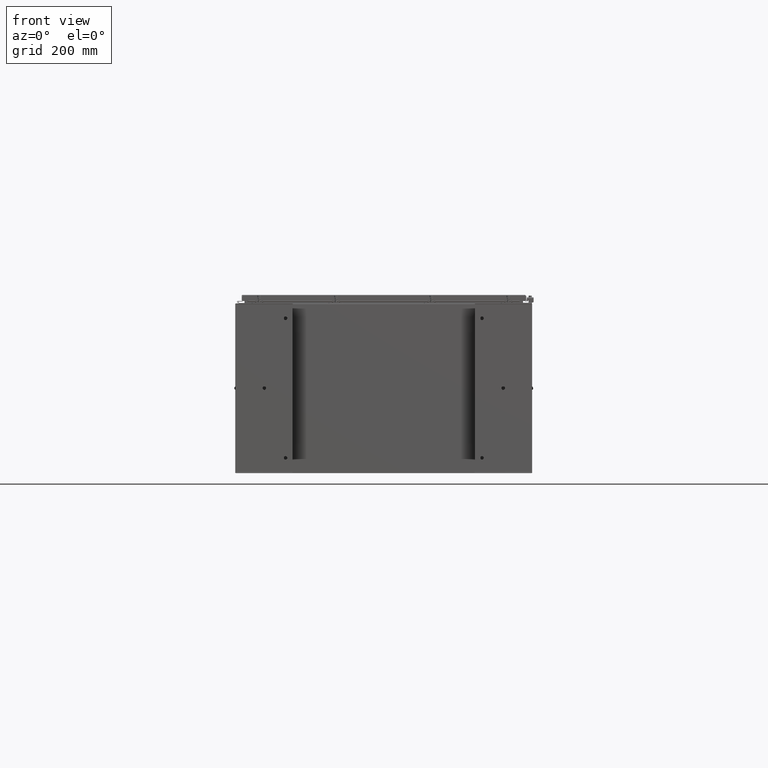
[diagram: clean part render]
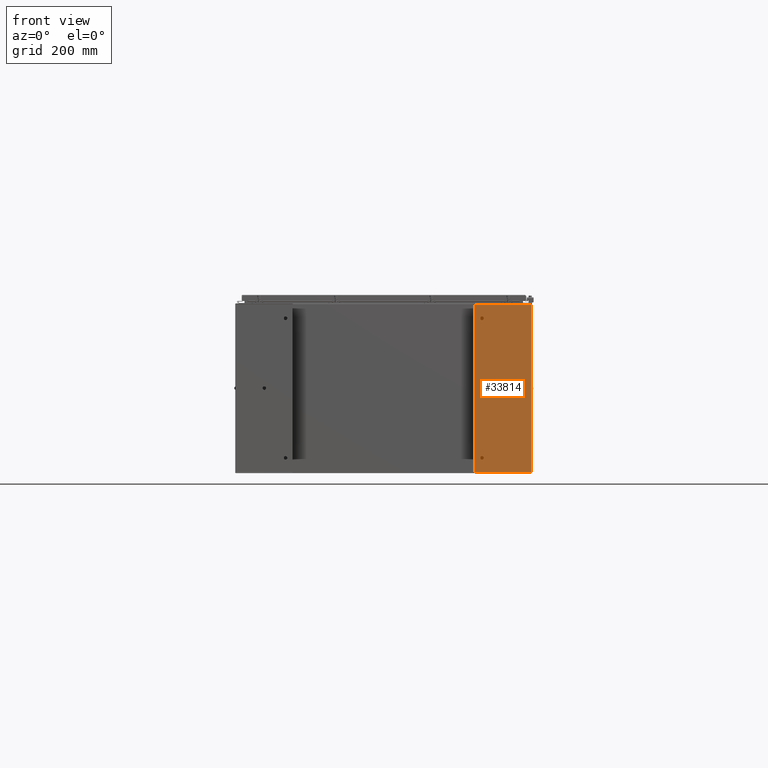
[diagram: same view with one face highlighted and labeled with its STEP entity id]
A machine part, front view. The second image highlights one B-rep face of the part: STEP entity #33814.
In plain terms, the highlighted planar face has unit normal (0, -1, 0).
Its self-contained STEP definition (entity closure, byte-faithful):
#2573 = EDGE_LOOP ( 'NONE', ( #6752, #62519 ) ) ;
#3866 = VERTEX_POINT ( 'NONE', #21113 ) ;
#4278 = CARTESIAN_POINT ( 'NONE',  ( -11.87899999999999800, -4.000000000000000900, -0.1050000000000000000 ) ) ;
#4342 = CIRCLE ( 'NONE', #58274, 0.2499999999999998100 ) ;
#6365 = DIRECTION ( 'NONE',  ( -0.0000000000000000000, -0.0000000000000000000, 1.000000000000000000 ) ) ;
#6752 = ORIENTED_EDGE ( 'NONE', *, *, #63840, .F. ) ;
#6792 = DIRECTION ( 'NONE',  ( -0.0000000000000000000, -1.000000000000000000, -0.0000000000000000000 ) ) ;
#7209 = CARTESIAN_POINT ( 'NONE',  ( 11.87900000000000300, -4.000000000000000900, -0.1050000000000000000 ) ) ;
#7696 = DIRECTION ( 'NONE',  ( 0.0000000000000000000, 0.0000000000000000000, -1.000000000000000000 ) ) ;
#8537 = AXIS2_PLACEMENT_3D ( 'NONE', #18632, #59901, #24550 ) ;
#8852 = CIRCLE ( 'NONE', #59727, 0.2499999999999998100 ) ;
#9178 = VECTOR ( 'NONE', #13282, 39.37007874015748100 ) ;
#9903 = CARTESIAN_POINT ( 'NONE',  ( 0.0000000000000000000, 0.0000000000000000000, -0.1050000000000000000 ) ) ;
#11868 = AXIS2_PLACEMENT_3D ( 'NONE', #23774, #64952, #29709 ) ;
#13282 = DIRECTION ( 'NONE',  ( 0.0000000000000000000, 1.000000000000000000, 0.0000000000000000000 ) ) ;
#14406 = DIRECTION ( 'NONE',  ( -1.000000000000000000, -0.0000000000000000000, -0.0000000000000000000 ) ) ;
#15290 = ORIENTED_EDGE ( 'NONE', *, *, #59393, .T. ) ;
#15319 = ORIENTED_EDGE ( 'NONE', *, *, #60577, .T. ) ;
#15990 = DIRECTION ( 'NONE',  ( -1.000000000000000000, 0.0000000000000000000, 0.0000000000000000000 ) ) ;
#17458 = ORIENTED_EDGE ( 'NONE', *, *, #68788, .T. ) ;
#18632 = CARTESIAN_POINT ( 'NONE',  ( 0.0000000000000000000, 0.0000000000000000000, -0.1050000000000000000 ) ) ;
#19335 = CARTESIAN_POINT ( 'NONE',  ( -11.87899999999999800, 3.999999999999999600, -0.1050000000000000000 ) ) ;
#19678 = VERTEX_POINT ( 'NONE', #57179 ) ;
#20607 = CIRCLE ( 'NONE', #8537, 0.2500000000000000000 ) ;
#21113 = CARTESIAN_POINT ( 'NONE',  ( 10.12900000000000100, -3.000000000000001300, -0.1050000000000000000 ) ) ;
#21781 = EDGE_CURVE ( 'NONE', #19678, #3866, #4342, .T. ) ;
#21828 = CIRCLE ( 'NONE', #33858, 0.2500000000000000000 ) ;
#22227 = DIRECTION ( 'NONE',  ( 0.0000000000000000000, 0.0000000000000000000, -1.000000000000000000 ) ) ;
#22440 = CARTESIAN_POINT ( 'NONE',  ( -9.629000000000001300, -3.000000000000001300, -0.1050000000000000000 ) ) ;
#23774 = CARTESIAN_POINT ( 'NONE',  ( -9.878999999999999600, -3.000000000000001300, -0.1050000000000000000 ) ) ;
#24550 = DIRECTION ( 'NONE',  ( -1.000000000000000000, 0.0000000000000000000, 0.0000000000000000000 ) ) ;
#25129 = CARTESIAN_POINT ( 'NONE',  ( -10.12900000000000100, -3.000000000000001300, -0.1050000000000000000 ) ) ;
#25263 = EDGE_CURVE ( 'NONE', #70321, #75459, #56532, .T. ) ;
#26540 = EDGE_LOOP ( 'NONE', ( #68889, #61252, #75317, #73524 ) ) ;
#29321 = ORIENTED_EDGE ( 'NONE', *, *, #42797, .T. ) ;
#29709 = DIRECTION ( 'NONE',  ( -1.000000000000000000, 0.0000000000000000000, 0.0000000000000000000 ) ) ;
#29984 = DIRECTION ( 'NONE',  ( -1.000000000000000000, 0.0000000000000000000, -0.0000000000000000000 ) ) ;
#31767 = FACE_BOUND ( 'NONE', #2573, .T. ) ;
#31941 = VECTOR ( 'NONE', #14406, 39.37007874015748100 ) ;
#33814 = ADVANCED_FACE ( 'NONE', ( #63110, #47540, #51250, #31767 ), #47615, .T. ) ;
#33858 = AXIS2_PLACEMENT_3D ( 'NONE', #9903, #51454, #15990 ) ;
#35605 = LINE ( 'NONE', #61673, #31941 ) ;
#35651 = CARTESIAN_POINT ( 'NONE',  ( 11.87900000000000300, 3.999999999999999600, -0.1050000000000000000 ) ) ;
#38058 = VERTEX_POINT ( 'NONE', #19335 ) ;
#40392 = VERTEX_POINT ( 'NONE', #22440 ) ;
#41610 = DIRECTION ( 'NONE',  ( -1.000000000000000000, 0.0000000000000000000, 0.0000000000000000000 ) ) ;
#41984 = CARTESIAN_POINT ( 'NONE',  ( -9.878999999999999600, -3.000000000000001300, -0.1050000000000000000 ) ) ;
#42047 = EDGE_CURVE ( 'NONE', #46865, #70321, #56719, .T. ) ;
#42797 = EDGE_CURVE ( 'NONE', #58496, #48599, #20607, .T. ) ;
#43555 = CIRCLE ( 'NONE', #11868, 0.2499999999999987000 ) ;
#45977 = EDGE_LOOP ( 'NONE', ( #17458, #15290 ) ) ;
#46372 = CARTESIAN_POINT ( 'NONE',  ( 11.87900000000000300, 3.999999999999999600, -0.1050000000000000000 ) ) ;
#46865 = VERTEX_POINT ( 'NONE', #49422 ) ;
#47540 = FACE_BOUND ( 'NONE', #48863, .T. ) ;
#47615 = PLANE ( 'NONE',  #63877 ) ;
#47704 = CIRCLE ( 'NONE', #59483, 0.2499999999999987000 ) ;
#47974 = DIRECTION ( 'NONE',  ( -1.000000000000000000, 0.0000000000000000000, 0.0000000000000000000 ) ) ;
#48599 = VERTEX_POINT ( 'NONE', #71486 ) ;
#48863 = EDGE_LOOP ( 'NONE', ( #29321, #15319 ) ) ;
#49422 = CARTESIAN_POINT ( 'NONE',  ( -11.87899999999999800, -4.000000000000000900, -0.1050000000000000000 ) ) ;
#50641 = EDGE_CURVE ( 'NONE', #75459, #38058, #35605, .T. ) ;
#51250 = FACE_BOUND ( 'NONE', #45977, .T. ) ;
#51454 = DIRECTION ( 'NONE',  ( -0.0000000000000000000, -0.0000000000000000000, 1.000000000000000000 ) ) ;
#51867 = DIRECTION ( 'NONE',  ( 1.000000000000000000, 0.0000000000000000000, 0.0000000000000000000 ) ) ;
#55544 = LINE ( 'NONE', #71964, #72918 ) ;
#56532 = LINE ( 'NONE', #7209, #9178 ) ;
#56719 = LINE ( 'NONE', #4278, #76006 ) ;
#57179 = CARTESIAN_POINT ( 'NONE',  ( 9.629000000000001300, -3.000000000000001300, -0.1050000000000000000 ) ) ;
#57594 = CARTESIAN_POINT ( 'NONE',  ( 9.878999999999999600, -3.000000000000001300, -0.1050000000000000000 ) ) ;
#58274 = AXIS2_PLACEMENT_3D ( 'NONE', #67110, #7696, #41610 ) ;
#58496 = VERTEX_POINT ( 'NONE', #60798 ) ;
#59393 = EDGE_CURVE ( 'NONE', #61917, #40392, #43555, .T. ) ;
#59483 = AXIS2_PLACEMENT_3D ( 'NONE', #41984, #6365, #47974 ) ;
#59727 = AXIS2_PLACEMENT_3D ( 'NONE', #57594, #22227, #63437 ) ;
#59901 = DIRECTION ( 'NONE',  ( -0.0000000000000000000, -0.0000000000000000000, 1.000000000000000000 ) ) ;
#60577 = EDGE_CURVE ( 'NONE', #48599, #58496, #21828, .T. ) ;
#60798 = CARTESIAN_POINT ( 'NONE',  ( 0.2500000000000000000, 0.0000000000000000000, -0.1050000000000000000 ) ) ;
#61252 = ORIENTED_EDGE ( 'NONE', *, *, #42047, .F. ) ;
#61673 = CARTESIAN_POINT ( 'NONE',  ( -11.87899999999999800, 3.999999999999999600, -0.1050000000000000000 ) ) ;
#61917 = VERTEX_POINT ( 'NONE', #25129 ) ;
#62519 = ORIENTED_EDGE ( 'NONE', *, *, #21781, .F. ) ;
#63110 = FACE_OUTER_BOUND ( 'NONE', #26540, .T. ) ;
#63437 = DIRECTION ( 'NONE',  ( -1.000000000000000000, 0.0000000000000000000, 0.0000000000000000000 ) ) ;
#63840 = EDGE_CURVE ( 'NONE', #3866, #19678, #8852, .T. ) ;
#63877 = AXIS2_PLACEMENT_3D ( 'NONE', #35651, #65209, #29984 ) ;
#64952 = DIRECTION ( 'NONE',  ( -0.0000000000000000000, -0.0000000000000000000, 1.000000000000000000 ) ) ;
#65209 = DIRECTION ( 'NONE',  ( 0.0000000000000000000, 0.0000000000000000000, -1.000000000000000000 ) ) ;
#67110 = CARTESIAN_POINT ( 'NONE',  ( 9.878999999999999600, -3.000000000000001300, -0.1050000000000000000 ) ) ;
#68788 = EDGE_CURVE ( 'NONE', #40392, #61917, #47704, .T. ) ;
#68889 = ORIENTED_EDGE ( 'NONE', *, *, #25263, .F. ) ;
#70321 = VERTEX_POINT ( 'NONE', #75508 ) ;
#71051 = EDGE_CURVE ( 'NONE', #38058, #46865, #55544, .T. ) ;
#71486 = CARTESIAN_POINT ( 'NONE',  ( -0.2500000000000000000, 3.061616997868383000E-017, -0.1050000000000000000 ) ) ;
#71964 = CARTESIAN_POINT ( 'NONE',  ( -11.87899999999999800, -4.000000000000000900, -0.1050000000000000000 ) ) ;
#72918 = VECTOR ( 'NONE', #6792, 39.37007874015748100 ) ;
#73524 = ORIENTED_EDGE ( 'NONE', *, *, #50641, .F. ) ;
#75317 = ORIENTED_EDGE ( 'NONE', *, *, #71051, .F. ) ;
#75459 = VERTEX_POINT ( 'NONE', #46372 ) ;
#75508 = CARTESIAN_POINT ( 'NONE',  ( 11.87900000000000300, -4.000000000000000900, -0.1050000000000000000 ) ) ;
#76006 = VECTOR ( 'NONE', #51867, 39.37007874015748100 ) ;